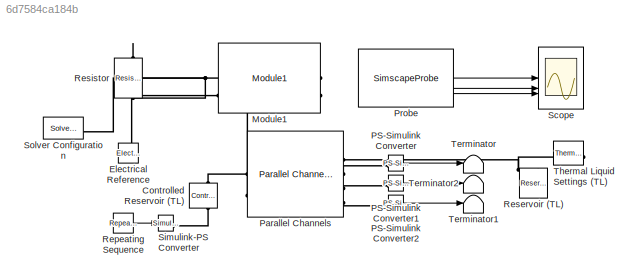
MODEL slx_6d7584ca184b
KIND model
CONFIG AbsTol = auto
CONFIG EnableMultiTasking = off
CONFIG FixedStep = auto
CONFIG MaxStep = auto
CONFIG MinStep = auto
CONFIG RelTol = 1e-3
CONFIG SampleTimeConstraint = Unconstrained
CONFIG SolverName = VariableStepAuto
CONFIG StartTime = 0.0
CONFIG StopTime = 2000
BLOCK [Reference] Controlled Reservoir (TL)  REF=fl_lib/Thermal Liquid/Elements/Controlled Reservoir
(TL)
  NameLocation = right
  SourceBlock = fl_lib/Thermal Liquid/Elements/Controlled Reservoir\n(TL)
  SourceType = Controlled Reservoir\n(TL)
BLOCK [Reference] Electrical Reference  REF=fl_lib/Electrical/Electrical Elements/Electrical Reference
  NameLocation = right
  SourceBlock = fl_lib/Electrical/Electrical Elements/Electrical Reference
  SourceType = Electrical Reference
BLOCK [Reference] Module1  REF=moduleBTMSExample_lib/Module1
  SourceBlock = moduleBTMSExample_lib/Module1
  SourceType = Module1
BLOCK [Reference] PS-Simulink Converter  REF=nesl_utility/PS-Simulink
Converter
  SourceBlock = nesl_utility/PS-Simulink\nConverter
  SourceType = PS-Simulink\nConverter
BLOCK [Reference] PS-Simulink Converter1  REF=nesl_utility/PS-Simulink
Converter
  SourceBlock = nesl_utility/PS-Simulink\nConverter
  SourceType = PS-Simulink\nConverter
BLOCK [Reference] PS-Simulink Converter2  REF=nesl_utility/PS-Simulink
Converter
  SourceBlock = nesl_utility/PS-Simulink\nConverter
  SourceType = PS-Simulink\nConverter
BLOCK [Reference] Parallel Channels  REF=batt_lib/Thermal/Parallel Channels
  SourceBlock = batt_lib/Thermal/Parallel Channels
  SourceType = Parallel Channels
BLOCK [SimscapeProbe] Probe
  BoundBlock = 1
  Variables = {"socCell":{"Probing":"ON"},"temperatureCell":{"Probing":"ON"},"vCell":{"Probing":"ON"}}
BLOCK [Reference] Repeating Sequence  REF=simulink/Sources/Repeating
Sequence
  SourceBlock = simulink/Sources/Repeating\nSequence
  SourceType = Repeating table
BLOCK [Reference] Reservoir (TL)  REF=fl_lib/Thermal Liquid/Elements/Reservoir (TL)
  NameLocation = right
  SourceBlock = fl_lib/Thermal Liquid/Elements/Reservoir (TL)
  SourceType = Reservoir (TL)
BLOCK [Reference] Resistor  REF=fl_lib/Electrical/Electrical Elements/Resistor
  NameLocation = left
  SourceBlock = fl_lib/Electrical/Electrical Elements/Resistor
  SourceType = Resistor
BLOCK [Scope] Scope
  ActiveDisplayYMaximum = 338.23565255005843
  ActiveDisplayYMinimum = -36.564543180943829
  Floating = off
  GraphicalSettings = {"Style":{"BackgroundColor":[0.12941176470588237,0.12941176470588237,0.12941176470588237],"AxesColor":[0.07058823529411765,0.07058823529411765,0.07058823529411765],"LabelsColor":[0.8509803921568627,0.8509803921568627,0.8509803921568627],"PreserveColors":false,"Visible":[true,true,true,true,true,true,true,true,true,true,true,true],"LineStyle":["-","-","-","-","-","-","-","-","-","-","-","-"],"LineW...<+3270ch>
  MultipleDisplayCache = [{"MaxYLimMag":338.23565255005843,"MaxYLimReal":338.23565255005843,"MinYLimMag":0,"MinYLimReal":-36.564543180943829,"PlotAsMagnitudePhase":false,"ShowGrid":true,"ShowLegend":false,"Title":"%<SignalLabel>","YLabel":""}]
  NumInputPorts = 3
  ScopeFrameLocation = window
  WasSavedAsWebScope = on
  WindowPosition = [360.000000,150.000000,560.000000,420.000000,]
BLOCK [Reference] Simulink-PS Converter  REF=nesl_utility/Simulink-PS
Converter
  SourceBlock = nesl_utility/Simulink-PS\nConverter
  SourceType = Simulink-PS\nConverter
BLOCK [Reference] Solver Configuration  REF=nesl_utility/Solver
Configuration
  SourceBlock = nesl_utility/Solver\nConfiguration
  SourceType = Solver\nConfiguration
BLOCK [Terminator] Terminator
BLOCK [Terminator] Terminator1
BLOCK [Terminator] Terminator2
BLOCK [Reference] Thermal Liquid Settings (TL)  REF=fl_lib/Thermal Liquid/Utilities/Thermal Liquid
Settings (TL)
  NameLocation = top
  SourceBlock = fl_lib/Thermal Liquid/Utilities/Thermal Liquid\nSettings (TL)
  SourceType = Thermal Liquid\nSettings (TL)
LINE PS-Simulink Converter1:1 -> Terminator2:1
LINE PS-Simulink Converter2:1 -> Terminator1:1
LINE PS-Simulink Converter:1 -> Terminator:1
LINE Probe:1 -> Scope:1
LINE Probe:2 -> Scope:2
LINE Probe:3 -> Scope:3
LINE Repeating Sequence:1 -> Simulink-PS Converter:1
PLINE Controlled Reservoir (TL):LConn1 -- Parallel Channels:LConn1
PLINE Controlled Reservoir (TL):RConn1 -- Simulink-PS Converter:RConn1
PNET net1: Electrical Reference:LConn1 -- Module1:RConn1 -- Resistor:RConn1 -- Solver Configuration:RConn1
PLINE Module1:LConn2 -- Resistor:LConn1
PLINE Module1:RConn2 -- Parallel Channels:LConn2
PLINE PS-Simulink Converter1:LConn1 -- Parallel Channels:RConn3
PLINE PS-Simulink Converter2:LConn1 -- Parallel Channels:RConn4
PLINE PS-Simulink Converter:LConn1 -- Parallel Channels:RConn2
PNET net2: Parallel Channels:RConn1 -- Reservoir (TL):LConn1 -- Thermal Liquid Settings (TL):RConn1
note: PNET lines group multi-terminal physical nets as a canonical sorted terminal list (undirected conserving connections); 2-terminal nets keep the pairwise PLINE form
